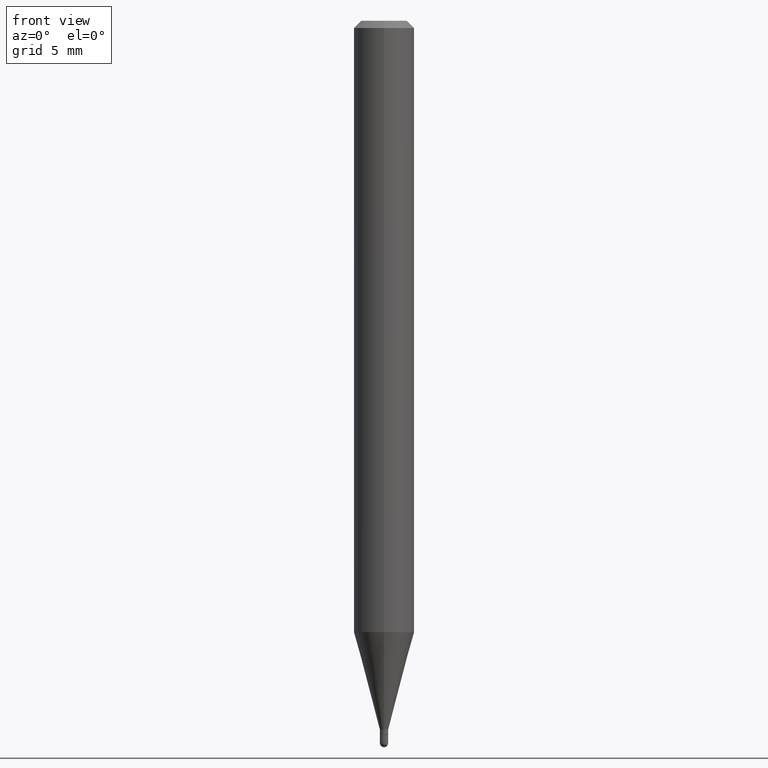
[diagram: clean part render]
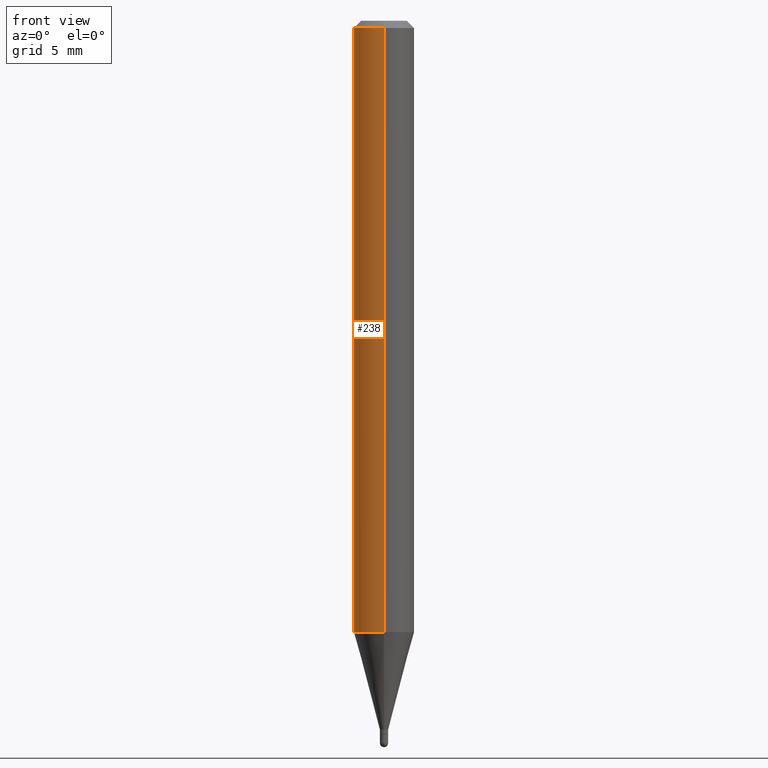
[diagram: same view with one face highlighted and labeled with its STEP entity id]
A machine part, front view. The second image highlights one B-rep face of the part: STEP entity #238.
In plain terms, the highlighted cylindrical surface (edge-blend (fillet) strip) has radius 1.5875 mm, axis along (-0, 0, 1).
Its self-contained STEP definition (entity closure, byte-faithful):
#3 = DIRECTION ( 'NONE',  ( -2.445476314194912029E-29, 3.491470586945817923E-15, 1.000000000000000000 ) ) ;
#16 = VECTOR ( 'NONE', #409, 39.37007874015748143 ) ;
#19 = DIRECTION ( 'NONE',  ( -2.445476314194912029E-29, 3.491470586945817923E-15, 1.000000000000000000 ) ) ;
#30 = CIRCLE ( 'NONE', #44, 0.06250000000000000000 ) ;
#32 = EDGE_CURVE ( 'NONE', #57, #314, #234, .T. ) ;
#44 = AXIS2_PLACEMENT_3D ( 'NONE', #410, #19, #382 ) ;
#57 = VERTEX_POINT ( 'NONE', #104 ) ;
#80 = CARTESIAN_POINT ( 'NONE',  ( -4.364351673553606573E-16, -0.06250000000000439926, -1.262469256391280714 ) ) ;
#94 = ORIENTED_EDGE ( 'NONE', *, *, #495, .T. ) ;
#101 = EDGE_CURVE ( 'NONE', #274, #291, #30, .T. ) ;
#104 = CARTESIAN_POINT ( 'NONE',  ( 4.440892098500932831E-16, 0.06249999999999557992, -1.262469256391281158 ) ) ;
#116 = CYLINDRICAL_SURFACE ( 'NONE', #387, 0.06250000000000000000 ) ;
#126 = ORIENTED_EDGE ( 'NONE', *, *, #101, .F. ) ;
#132 = DIRECTION ( 'NONE',  ( -2.445476314194912029E-29, 3.491470586945817529E-15, 1.000000000000000000 ) ) ;
#167 = DIRECTION ( 'NONE',  ( -6.982962677686265922E-15, -1.000000000000000000, 4.370956789862821150E-15 ) ) ;
#201 = FACE_OUTER_BOUND ( 'NONE', #480, .T. ) ;
#234 = CIRCLE ( 'NONE', #337, 0.06250000000000000000 ) ;
#238 = ADVANCED_FACE ( 'NONE', ( #201 ), #116, .T. ) ;
#250 = LINE ( 'NONE', #481, #16 ) ;
#264 = CARTESIAN_POINT ( 'NONE',  ( 0.000000000000000000, 0.000000000000000000, 0.000000000000000000 ) ) ;
#274 = VERTEX_POINT ( 'NONE', #388 ) ;
#290 = ORIENTED_EDGE ( 'NONE', *, *, #32, .T. ) ;
#291 = VERTEX_POINT ( 'NONE', #507 ) ;
#314 = VERTEX_POINT ( 'NONE', #80 ) ;
#337 = AXIS2_PLACEMENT_3D ( 'NONE', #441, #3, #167 ) ;
#358 = DIRECTION ( 'NONE',  ( -2.445476314194912029E-29, 3.491470586945817923E-15, 1.000000000000000000 ) ) ;
#365 = ORIENTED_EDGE ( 'NONE', *, *, #504, .F. ) ;
#382 = DIRECTION ( 'NONE',  ( -6.982962677686265922E-15, -1.000000000000000000, 3.483106191921935554E-15 ) ) ;
#387 = AXIS2_PLACEMENT_3D ( 'NONE', #264, #358, #506 ) ;
#388 = CARTESIAN_POINT ( 'NONE',  ( 4.440892098500935790E-16, 0.06249999999999995143, -0.01499999999999997863 ) ) ;
#400 = VECTOR ( 'NONE', #132, 39.37007874015748143 ) ;
#409 = DIRECTION ( 'NONE',  ( -2.445476314194912029E-29, 3.491470586945817529E-15, 1.000000000000000000 ) ) ;
#410 = CARTESIAN_POINT ( 'NONE',  ( 3.668214471292309505E-31, -5.237205880418643043E-17, -0.01499999999999976179 ) ) ;
#441 = CARTESIAN_POINT ( 'NONE',  ( 3.087338663904141149E-29, -4.407874275613516447E-15, -1.262469256391280936 ) ) ;
#447 = LINE ( 'NONE', #471, #400 ) ;
#471 = CARTESIAN_POINT ( 'NONE',  ( 4.440892098500625669E-16, 0.06250000000000000000, -2.182169116841135955E-16 ) ) ;
#480 = EDGE_LOOP ( 'NONE', ( #365, #290, #94, #126 ) ) ;
#481 = CARTESIAN_POINT ( 'NONE',  ( -4.364351673553916201E-16, -0.06250000000000000000, 2.182169116841135955E-16 ) ) ;
#495 = EDGE_CURVE ( 'NONE', #314, #291, #250, .T. ) ;
#504 = EDGE_CURVE ( 'NONE', #57, #274, #447, .T. ) ;
#506 = DIRECTION ( 'NONE',  ( -6.982962677686265922E-15, -1.000000000000000000, 3.491470586945817529E-15 ) ) ;
#507 = CARTESIAN_POINT ( 'NONE',  ( -4.364351673553912750E-16, -0.06250000000000005551, -0.01499999999999954321 ) ) ;